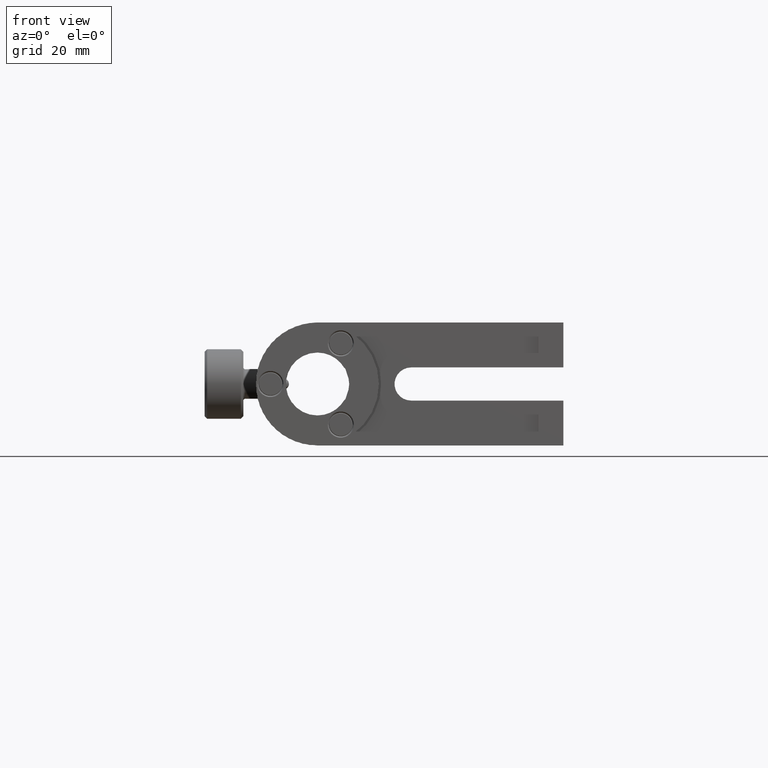
[diagram: clean part render]
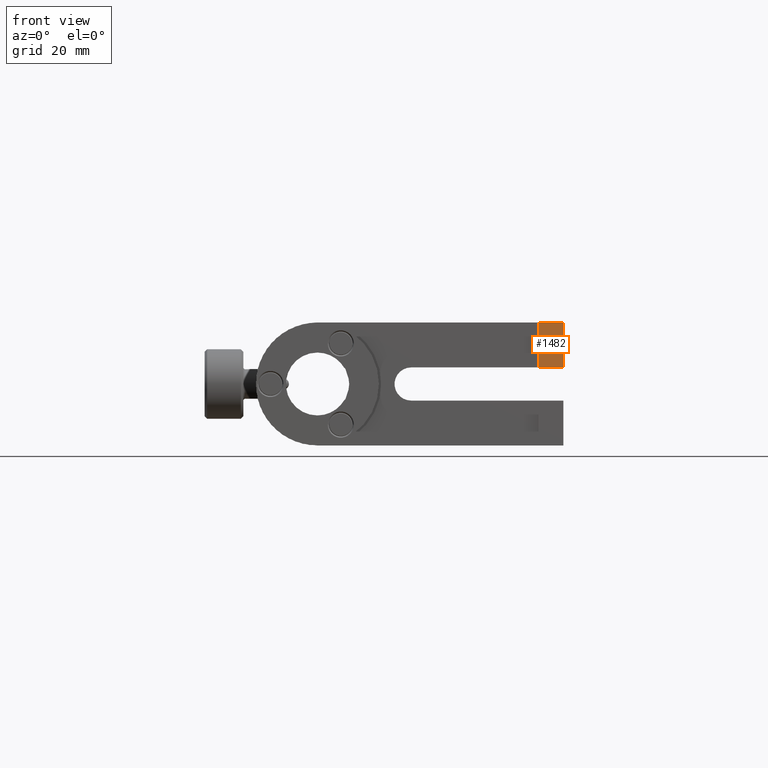
[diagram: same view with one face highlighted and labeled with its STEP entity id]
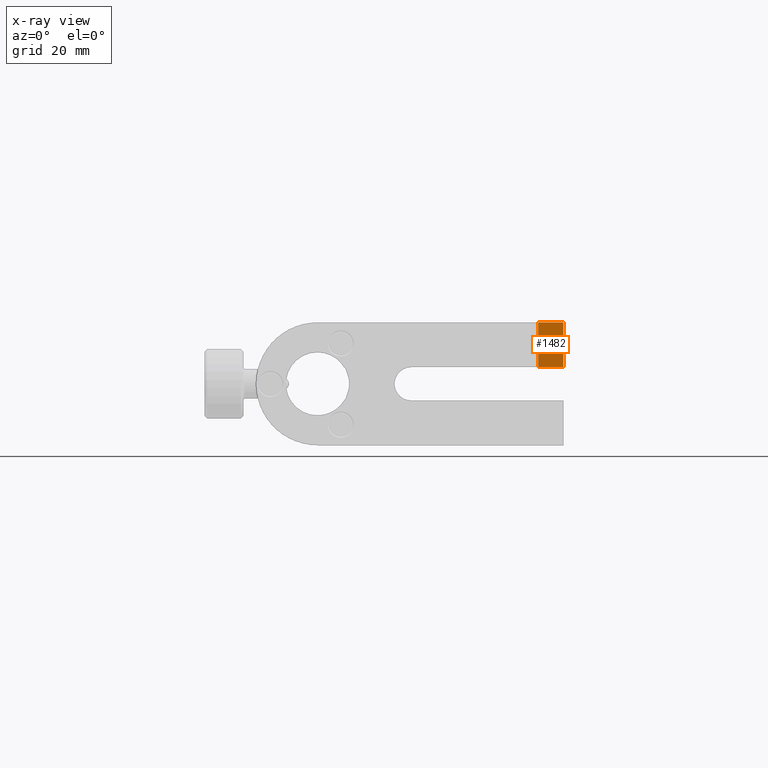
[diagram: x-ray of the same camera — body ghosted, the highlighted face saturated]
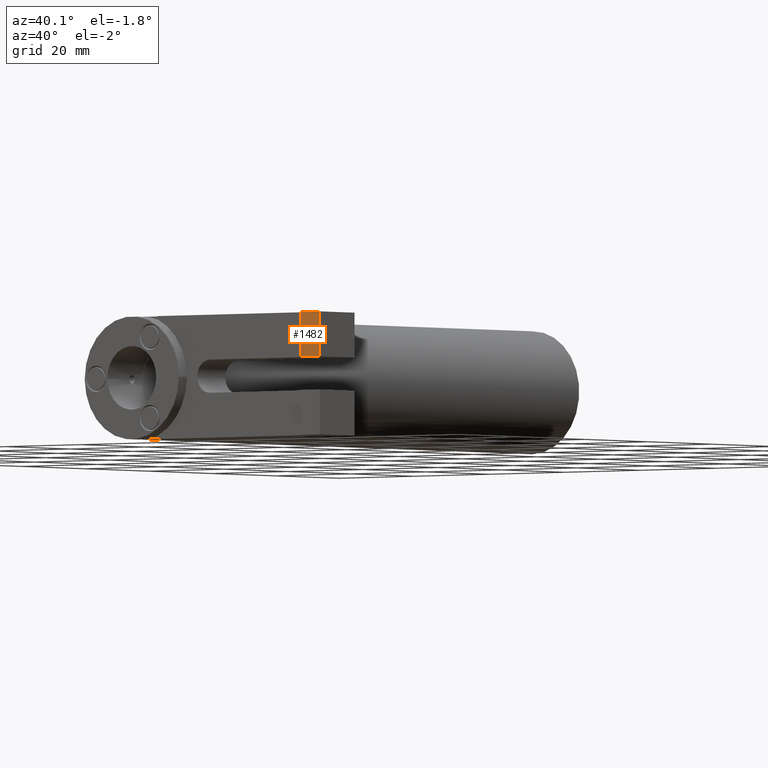
[diagram: same view with one face highlighted and labeled with its STEP entity id]
A machine part, front view. The second image highlights one B-rep face of the part: STEP entity #1482.
The next image is the same camera in x-ray: the body ghosted, the highlighted face saturated — about 0% of this face is hidden behind the body in this view.
A second angle (auxiliary view) of the same face is appended — the face is thin or edge-on in the first view.
In plain terms, the highlighted planar face has unit normal (0, 1, -0).
Its self-contained STEP definition (entity closure, byte-faithful):
#109 = CARTESIAN_POINT ( 'NONE',  ( 54.12306664389138400, -5.223865212235105900, 8.999471541716452500E-015 ) ) ;
#306 = DIRECTION ( 'NONE',  ( 0.0000000000000000000, 0.0000000000000000000, 1.000000000000000000 ) ) ;
#344 = LINE ( 'NONE', #2485, #2136 ) ;
#377 = DIRECTION ( 'NONE',  ( 1.000000000000000000, -0.0000000000000000000, 0.0000000000000000000 ) ) ;
#416 = DIRECTION ( 'NONE',  ( 0.0000000000000000000, 0.0000000000000000000, -1.000000000000000000 ) ) ;
#460 = CARTESIAN_POINT ( 'NONE',  ( 49.04306664389137900, -5.223865212235105900, 12.49679999999999900 ) ) ;
#673 = CARTESIAN_POINT ( 'NONE',  ( 49.04306664389137900, -5.223865212235105900, 3.365500000000004400 ) ) ;
#904 = CARTESIAN_POINT ( 'NONE',  ( 54.12306664389138400, -5.223865212235105900, 3.365500000000003900 ) ) ;
#971 = EDGE_CURVE ( 'NONE', #2055, #3588, #1466, .T. ) ;
#1122 = CARTESIAN_POINT ( 'NONE',  ( -29.62103515794081700, -5.223865212235105900, 3.365500000000010200 ) ) ;
#1165 = VECTOR ( 'NONE', #416, 1000.000000000000000 ) ;
#1212 = LINE ( 'NONE', #1441, #2924 ) ;
#1255 = VERTEX_POINT ( 'NONE', #2250 ) ;
#1441 = CARTESIAN_POINT ( 'NONE',  ( 49.04306664389137900, -5.223865212235105900, 8.999471541716452500E-015 ) ) ;
#1466 = LINE ( 'NONE', #1122, #3735 ) ;
#1482 = ADVANCED_FACE ( 'NONE', ( #2549 ), #3658, .F. ) ;
#1494 = ORIENTED_EDGE ( 'NONE', *, *, #971, .F. ) ;
#1694 = ORIENTED_EDGE ( 'NONE', *, *, #3534, .F. ) ;
#2055 = VERTEX_POINT ( 'NONE', #904 ) ;
#2136 = VECTOR ( 'NONE', #377, 1000.000000000000000 ) ;
#2192 = DIRECTION ( 'NONE',  ( 0.0000000000000000000, 0.0000000000000000000, 1.000000000000000000 ) ) ;
#2250 = CARTESIAN_POINT ( 'NONE',  ( 54.12306664389138400, -5.223865212235105900, 12.49679999999999900 ) ) ;
#2485 = CARTESIAN_POINT ( 'NONE',  ( -29.62103515794081700, -5.223865212235105900, 12.49679999999999900 ) ) ;
#2549 = FACE_OUTER_BOUND ( 'NONE', #3035, .T. ) ;
#2654 = EDGE_CURVE ( 'NONE', #3588, #3725, #1212, .T. ) ;
#2903 = DIRECTION ( 'NONE',  ( -1.000000000000000000, 0.0000000000000000000, 7.006152972442677000E-017 ) ) ;
#2924 = VECTOR ( 'NONE', #306, 1000.000000000000000 ) ;
#3014 = ORIENTED_EDGE ( 'NONE', *, *, #3611, .F. ) ;
#3035 = EDGE_LOOP ( 'NONE', ( #1694, #3166, #1494, #3014 ) ) ;
#3085 = CARTESIAN_POINT ( 'NONE',  ( -29.62103515794081700, -5.223865212235105900, 8.999471541716452500E-015 ) ) ;
#3138 = AXIS2_PLACEMENT_3D ( 'NONE', #3085, #3631, #2192 ) ;
#3166 = ORIENTED_EDGE ( 'NONE', *, *, #2654, .F. ) ;
#3534 = EDGE_CURVE ( 'NONE', #3725, #1255, #344, .T. ) ;
#3588 = VERTEX_POINT ( 'NONE', #673 ) ;
#3611 = EDGE_CURVE ( 'NONE', #1255, #2055, #3613, .T. ) ;
#3613 = LINE ( 'NONE', #109, #1165 ) ;
#3631 = DIRECTION ( 'NONE',  ( 0.0000000000000000000, 1.000000000000000000, -0.0000000000000000000 ) ) ;
#3658 = PLANE ( 'NONE',  #3138 ) ;
#3725 = VERTEX_POINT ( 'NONE', #460 ) ;
#3735 = VECTOR ( 'NONE', #2903, 1000.000000000000000 ) ;